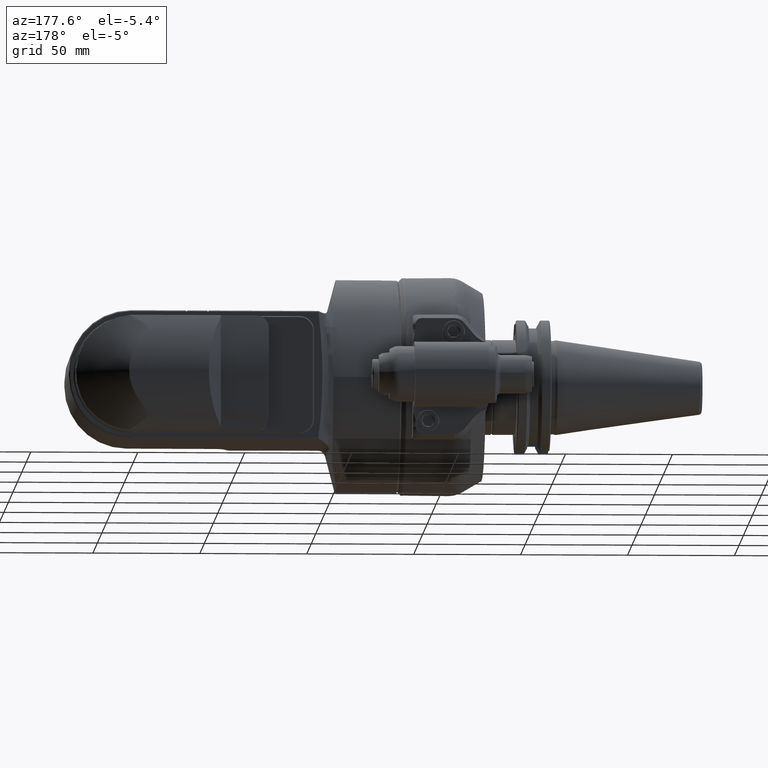
[diagram: clean part render]
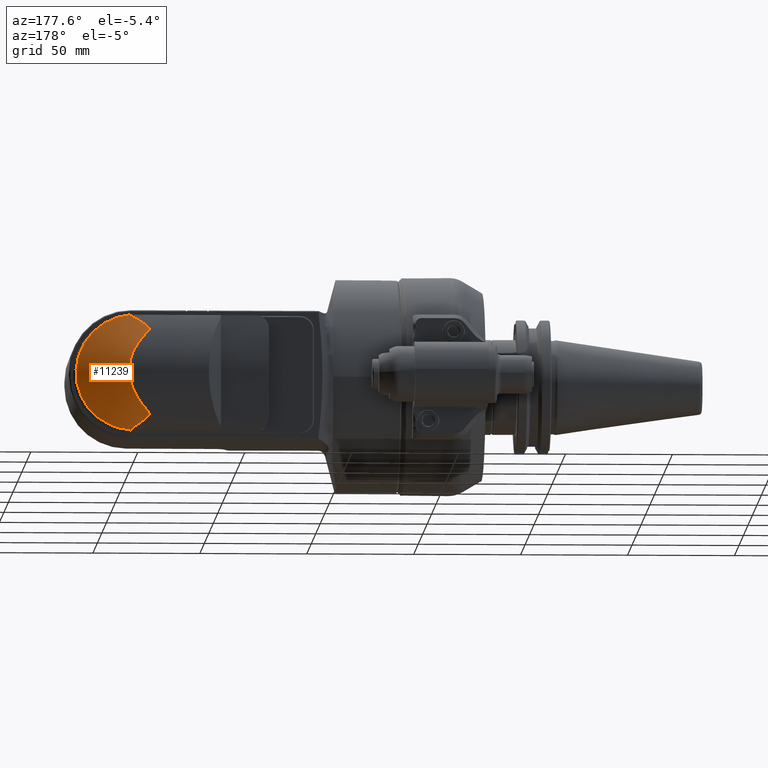
[diagram: same view with one face highlighted and labeled with its STEP entity id]
A machine part, auxiliary view. The second image highlights one B-rep face of the part: STEP entity #11239.
In plain terms, the highlighted conical surface has half-angle 60 deg.
Its self-contained STEP definition (entity closure, byte-faithful):
#230=B_SPLINE_CURVE_WITH_KNOTS('',3,(#17414,#17415,#17416,#17417,#17418,
#17419,#17420,#17421,#17422,#17423,#17424,#17425,#17426,#17427,#17428,#17429,
#17430,#17431,#17432,#17433,#17434,#17435,#17436,#17437,#17438,#17439,#17440,
#17441,#17442,#17443,#17444,#17445,#17446,#17447),.UNSPECIFIED.,.F.,.F.,
(4,2,2,2,2,2,2,2,2,2,2,2,2,2,2,2,4),(-12.067468543747,-11.7719801831184,
-11.2574403168677,-10.7429004506171,-10.2283605843664,-9.72023521365885,
-9.21210984295131,-8.70398447224377,-8.19585910153624,-7.6877337308287,
-7.17960836012116,-6.67148298941363,-6.16335761870609,-5.64881775245542,
-5.13427788620475,-4.61973801995407,-4.32424951617825),.UNSPECIFIED.);
#233=B_SPLINE_CURVE_WITH_KNOTS('',3,(#17461,#17462,#17463,#17464,#17465,
#17466,#17467,#17468,#17469,#17470,#17471,#17472,#17473,#17474,#17475,#17476,
#17477,#17478,#17479,#17480,#17481,#17482,#17483,#17484,#17485,#17486,#17487,
#17488,#17489,#17490,#17491,#17492,#17493,#17494,#17495,#17496,#17497,#17498,
#17499,#17500,#17501,#17502,#17503,#17504,#17505,#17506,#17507,#17508,#17509,
#17510,#17511,#17512,#17513,#17514,#17515,#17516,#17517,#17518),
 .UNSPECIFIED.,.F.,.F.,(4,2,2,2,2,2,2,2,2,2,2,2,2,2,2,2,2,2,2,2,2,2,2,2,
2,2,2,2,4),(3.94319316074111,4.52361237054039,4.924382711645,5.12476788219731,
5.22496046747346,5.27505676011154,5.32515305274961,5.36679206140051,5.4084310700514,
5.49170908735319,5.65826512195676,5.99137719116391,6.6576013295782,7.32382546799249,
7.99004960640678,8.65627374482107,9.32249788323536,9.98872202164966,10.3218340908568,
10.4883901254604,10.5716681427622,10.6133071514131,10.6549461600639,10.705042452702,
10.7551387453401,10.8553313306163,11.0557165011686,11.4564868422732,12.036906155571),
 .UNSPECIFIED.);
#399=CONICAL_SURFACE('',#12067,22.87564434702,1.0471975511966);
#1032=FACE_OUTER_BOUND('',#1759,.T.);
#1759=EDGE_LOOP('',(#7871,#7872));
#4866=VERTEX_POINT('',#17412);
#4867=VERTEX_POINT('',#17413);
#6036=EDGE_CURVE('',#4866,#4867,#230,.F.);
#6041=EDGE_CURVE('',#4867,#4866,#233,.F.);
#7871=ORIENTED_EDGE('',*,*,#6036,.F.);
#7872=ORIENTED_EDGE('',*,*,#6041,.F.);
#11239=ADVANCED_FACE('',(#1032),#399,.T.);
#12067=AXIS2_PLACEMENT_3D('',#17460,#13660,#13661);
#13660=DIRECTION('center_axis',(0.,-1.,0.));
#13661=DIRECTION('ref_axis',(1.,0.,1.22464679914735E-16));
#17412=CARTESIAN_POINT('',(2.18896538678692,68.5937762699796,-26.9111208747433));
#17413=CARTESIAN_POINT('',(2.18896640291591,68.5937761899869,26.9111208170646));
#17414=CARTESIAN_POINT('Ctrl Pts',(2.18896621116317,68.5937763493601,26.9111208782984));
#17415=CARTESIAN_POINT('Ctrl Pts',(3.18316108853154,68.4341959454126,26.8302524892144));
#17416=CARTESIAN_POINT('Ctrl Pts',(4.18755829561801,68.2752948867815,26.6928209055798));
#17417=CARTESIAN_POINT('Ctrl Pts',(6.93411863662108,67.8466884994796,26.1548954301703));
#17418=CARTESIAN_POINT('Ctrl Pts',(8.67113031628412,67.5822422853765,25.6333461145042));
#17419=CARTESIAN_POINT('Ctrl Pts',(12.0054517480497,67.0847795543394,24.2513103856349));
#17420=CARTESIAN_POINT('Ctrl Pts',(13.6053858990517,66.851318038163,23.3897242329092));
#17421=CARTESIAN_POINT('Ctrl Pts',(16.5659361410298,66.4261469582135,21.395221076354));
#17422=CARTESIAN_POINT('Ctrl Pts',(17.9264583294083,66.2344032621943,20.2621719672155));
#17423=CARTESIAN_POINT('Ctrl Pts',(20.3204200422724,65.9008778621698,17.8583834802135));
#17424=CARTESIAN_POINT('Ctrl Pts',(21.4382789736491,65.7473306558022,16.5086026362788));
#17425=CARTESIAN_POINT('Ctrl Pts',(23.4102482321784,65.4789549595162,13.5681260333779));
#17426=CARTESIAN_POINT('Ctrl Pts',(24.2644680437031,65.3640677095974,11.9775090626542));
#17427=CARTESIAN_POINT('Ctrl Pts',(25.6370342039309,65.1804621197005,8.65838378038451));
#17428=CARTESIAN_POINT('Ctrl Pts',(26.156485897207,65.1115726403722,6.92719146202858));
#17429=CARTESIAN_POINT('Ctrl Pts',(26.8380415000532,65.0213338687703,3.44488961849862));
#17430=CARTESIAN_POINT('Ctrl Pts',(27.,65.0000000000012,1.69375123569179));
#17431=CARTESIAN_POINT('Ctrl Pts',(27.,65.0000000000012,-1.69375123569179));
#17432=CARTESIAN_POINT('Ctrl Pts',(26.8380415000532,65.0213338687703,-3.44488961849861));
#17433=CARTESIAN_POINT('Ctrl Pts',(26.1564858972071,65.1115726403722,-6.92719146202857));
#17434=CARTESIAN_POINT('Ctrl Pts',(25.6370342039309,65.1804621197004,-8.65838378038451));
#17435=CARTESIAN_POINT('Ctrl Pts',(24.2644680437031,65.3640677095974,-11.9775090626542));
#17436=CARTESIAN_POINT('Ctrl Pts',(23.4102482321784,65.4789549595162,-13.5681260333779));
#17437=CARTESIAN_POINT('Ctrl Pts',(21.4382789736491,65.7473306558022,-16.5086026362788));
#17438=CARTESIAN_POINT('Ctrl Pts',(20.3204200422724,65.9008778621698,-17.8583834802135));
#17439=CARTESIAN_POINT('Ctrl Pts',(17.9264583294083,66.2344032621943,-20.2621719672155));
#17440=CARTESIAN_POINT('Ctrl Pts',(16.5659361410298,66.4261469582135,-21.395221076354));
#17441=CARTESIAN_POINT('Ctrl Pts',(13.6053858990517,66.851318038163,-23.3897242329092));
#17442=CARTESIAN_POINT('Ctrl Pts',(12.0054517480497,67.0847795543394,-24.2513103856349));
#17443=CARTESIAN_POINT('Ctrl Pts',(8.67113031628412,67.5822422853765,-25.6333461145042));
#17444=CARTESIAN_POINT('Ctrl Pts',(6.93411863662108,67.8466884994796,-26.1548954301703));
#17445=CARTESIAN_POINT('Ctrl Pts',(4.18755781024897,68.2752949625243,-26.6928210006414));
#17446=CARTESIAN_POINT('Ctrl Pts',(3.18316011533751,68.4341960993943,-26.8302526221082));
#17447=CARTESIAN_POINT('Ctrl Pts',(2.18896476624707,68.5937765812867,-26.9111209958286));
#17460=CARTESIAN_POINT('Origin',(-7.99999999999999,72.,0.));
#17461=CARTESIAN_POINT('Ctrl Pts',(2.18896612037634,68.5937770258262,-26.9111196598298));
#17462=CARTESIAN_POINT('Ctrl Pts',(0.601241771459223,69.3927859231158,-26.0324608954628));
#17463=CARTESIAN_POINT('Ctrl Pts',(-0.97797165350094,70.1890225137198,-25.0735239483591));
#17464=CARTESIAN_POINT('Ctrl Pts',(-3.36903009873964,71.4107288201491,-23.4569743766932));
#17465=CARTESIAN_POINT('Ctrl Pts',(-4.26536609910185,71.8718505644754,-22.8041542132906));
#17466=CARTESIAN_POINT('Ctrl Pts',(-5.43863144023955,72.5092437077153,-21.8466836907894));
#17467=CARTESIAN_POINT('Ctrl Pts',(-5.79636464194115,72.7085656570735,-21.5379067556194));
#17468=CARTESIAN_POINT('Ctrl Pts',(-6.28038175775632,73.0152204346235,-21.0476089427361));
#17469=CARTESIAN_POINT('Ctrl Pts',(-6.43111958109374,73.1167308141114,-20.8829033984884));
#17470=CARTESIAN_POINT('Ctrl Pts',(-6.63097736176351,73.2849014561486,-20.6047871683536));
#17471=CARTESIAN_POINT('Ctrl Pts',(-6.69279960726083,73.3432935635886,-20.5074189208314));
#17472=CARTESIAN_POINT('Ctrl Pts',(-6.79462514802083,73.4724782634303,-20.2895116971905));
#17473=CARTESIAN_POINT('Ctrl Pts',(-6.83561719503478,73.5430999225755,-20.1693347223506));
#17474=CARTESIAN_POINT('Ctrl Pts',(-6.85087976173719,73.6959920913905,-19.9049579081016));
#17475=CARTESIAN_POINT('Ctrl Pts',(-6.83277876494206,73.756058429178,-19.7997167791148));
#17476=CARTESIAN_POINT('Ctrl Pts',(-6.77578231094319,73.8656804869621,-19.6060374998333));
#17477=CARTESIAN_POINT('Ctrl Pts',(-6.73661947168808,73.9151910412585,-19.5176525703231));
#17478=CARTESIAN_POINT('Ctrl Pts',(-6.60451574716896,74.0559993377173,-19.2643260123753));
#17479=CARTESIAN_POINT('Ctrl Pts',(-6.49825321810148,74.1390348627589,-19.1122363251123));
#17480=CARTESIAN_POINT('Ctrl Pts',(-6.15702043868657,74.3831270770857,-18.6588420493251));
#17481=CARTESIAN_POINT('Ctrl Pts',(-5.90338644790979,74.5337104149135,-18.3703679377792));
#17482=CARTESIAN_POINT('Ctrl Pts',(-5.10187070674309,74.9928294030515,-17.4635335214468));
#17483=CARTESIAN_POINT('Ctrl Pts',(-4.52293526492769,75.2975542547605,-16.823802155543));
#17484=CARTESIAN_POINT('Ctrl Pts',(-2.79719533928567,76.1977376637657,-14.7830773810914));
#17485=CARTESIAN_POINT('Ctrl Pts',(-1.62347581106335,76.79195432411,-13.215230391849));
#17486=CARTESIAN_POINT('Ctrl Pts',(0.317437309418978,77.7746228311929,-9.97009390437535));
#17487=CARTESIAN_POINT('Ctrl Pts',(1.16844165177966,78.2032988141375,-8.18219983470156));
#17488=CARTESIAN_POINT('Ctrl Pts',(2.38474519616812,78.8157653037312,-4.30729599150246));
#17489=CARTESIAN_POINT('Ctrl Pts',(2.75128869403789,79.,-2.22074712804763));
#17490=CARTESIAN_POINT('Ctrl Pts',(2.75128869403789,79.,2.22074712804764));
#17491=CARTESIAN_POINT('Ctrl Pts',(2.38474519616812,78.8157653037312,4.30729599150246));
#17492=CARTESIAN_POINT('Ctrl Pts',(1.16844165177966,78.2032988141375,8.18219983470156));
#17493=CARTESIAN_POINT('Ctrl Pts',(0.317437309418978,77.774622831193,9.97009390437534));
#17494=CARTESIAN_POINT('Ctrl Pts',(-1.62347581106339,76.79195432411,13.215230391849));
#17495=CARTESIAN_POINT('Ctrl Pts',(-2.79719533928567,76.1977376637657,14.7830773810914));
#17496=CARTESIAN_POINT('Ctrl Pts',(-4.52293526492769,75.2975542547605,16.823802155543));
#17497=CARTESIAN_POINT('Ctrl Pts',(-5.10187070674304,74.9928294030515,17.4635335214468));
#17498=CARTESIAN_POINT('Ctrl Pts',(-5.90338644790977,74.5337104149135,18.3703679377792));
#17499=CARTESIAN_POINT('Ctrl Pts',(-6.15702043868668,74.3831270770857,18.658842049325));
#17500=CARTESIAN_POINT('Ctrl Pts',(-6.49825321810164,74.1390348627589,19.1122363251122));
#17501=CARTESIAN_POINT('Ctrl Pts',(-6.60451574716872,74.0559993377172,19.2643260123754));
#17502=CARTESIAN_POINT('Ctrl Pts',(-6.73661947168782,73.9151910412584,19.5176525703232));
#17503=CARTESIAN_POINT('Ctrl Pts',(-6.7757823109431,73.865680486962,19.6060374998334));
#17504=CARTESIAN_POINT('Ctrl Pts',(-6.83277876494193,73.7560584291779,19.7997167791148));
#17505=CARTESIAN_POINT('Ctrl Pts',(-6.85087976173719,73.6959920913905,19.9049579081016));
#17506=CARTESIAN_POINT('Ctrl Pts',(-6.83561719503478,73.5430999225755,20.1693347223506));
#17507=CARTESIAN_POINT('Ctrl Pts',(-6.79462514802061,73.4724782634304,20.2895116971905));
#17508=CARTESIAN_POINT('Ctrl Pts',(-6.69279960726062,73.3432935635886,20.5074189208313));
#17509=CARTESIAN_POINT('Ctrl Pts',(-6.63097736176358,73.2849014561486,20.6047871683537));
#17510=CARTESIAN_POINT('Ctrl Pts',(-6.43111958109378,73.1167308141114,20.8829033984884));
#17511=CARTESIAN_POINT('Ctrl Pts',(-6.28038175775622,73.0152204346236,21.047608942736));
#17512=CARTESIAN_POINT('Ctrl Pts',(-5.79636464194103,72.7085656570735,21.5379067556193));
#17513=CARTESIAN_POINT('Ctrl Pts',(-5.43863144023955,72.5092437077153,21.8466836907894));
#17514=CARTESIAN_POINT('Ctrl Pts',(-4.26536609910187,71.8718505644754,22.8041542132907));
#17515=CARTESIAN_POINT('Ctrl Pts',(-3.36903009873957,71.4107288201491,23.4569743766932));
#17516=CARTESIAN_POINT('Ctrl Pts',(-0.977971401285557,70.1890223848509,
25.0735241188771));
#17517=CARTESIAN_POINT('Ctrl Pts',(0.601242335055295,69.3927856386244,26.0324612363522));
#17518=CARTESIAN_POINT('Ctrl Pts',(2.18896696974601,68.5937765983881,26.9111201298775));